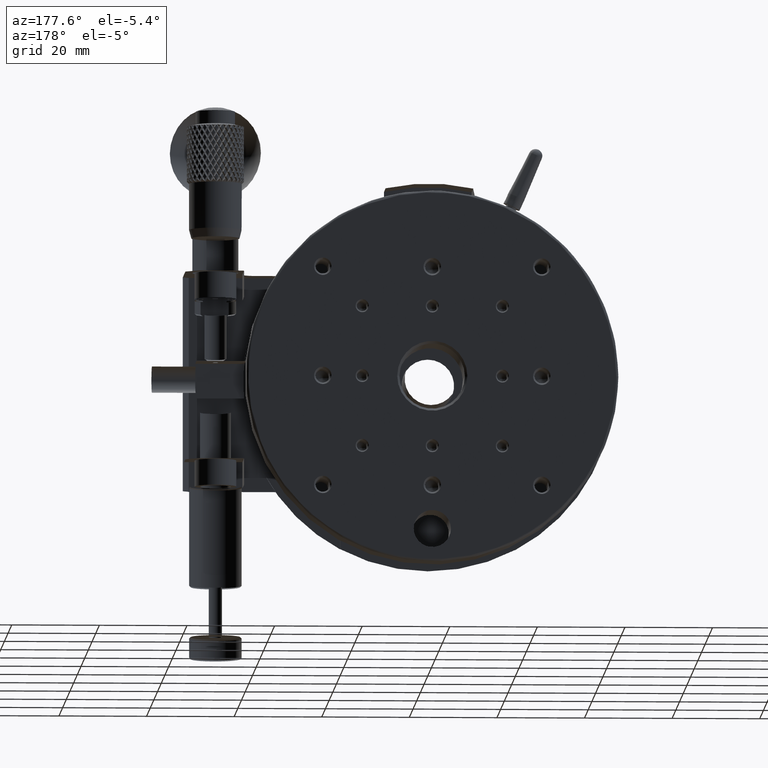
[diagram: clean part render]
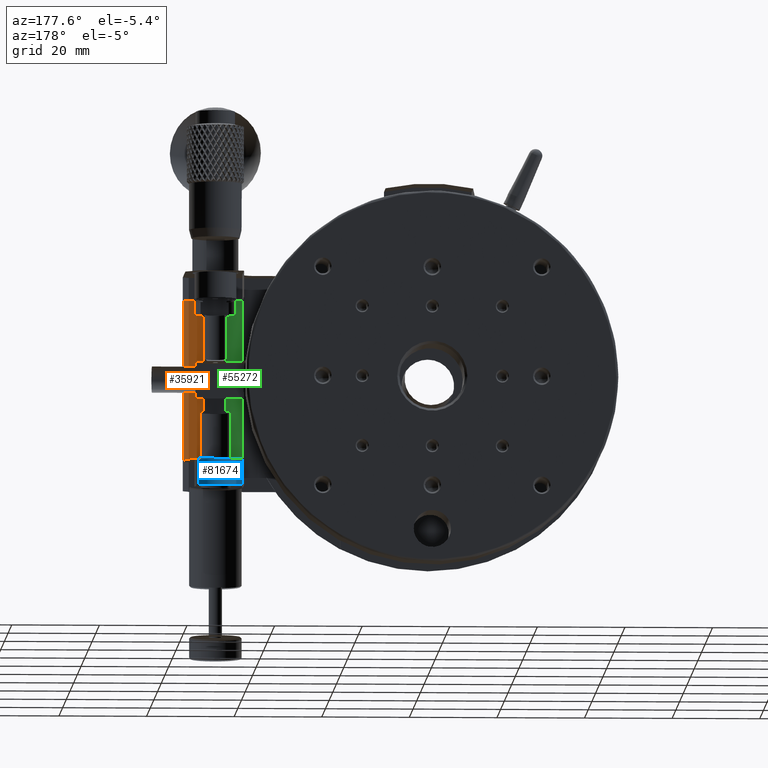
[diagram: same view with three faces highlighted in distinct colors, each labeled with its STEP entity id]
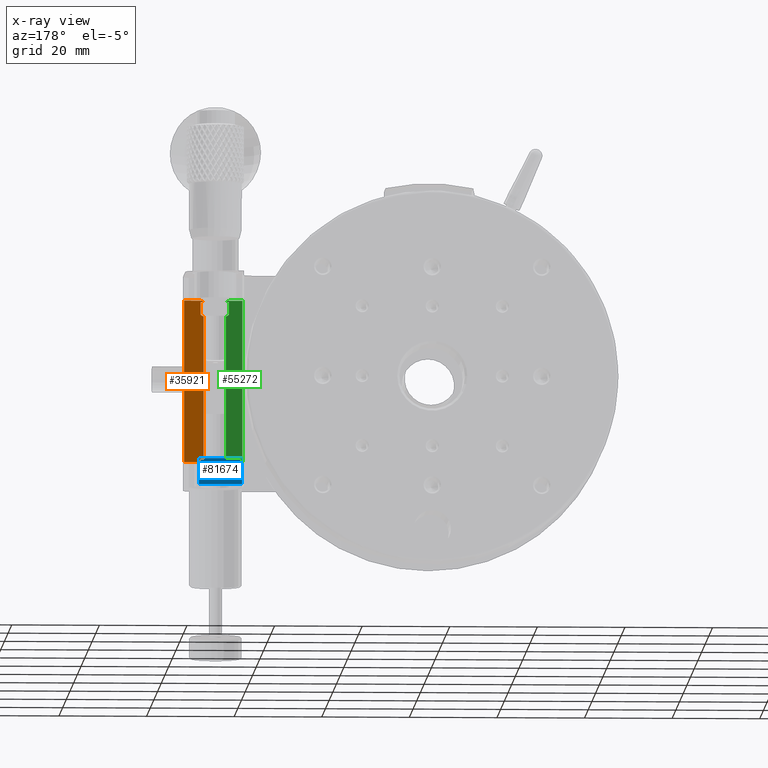
[diagram: x-ray of the same camera — body ghosted, the three highlighted faces saturated]
A machine part, auxiliary view with three faces highlighted in distinct colors.
The next image is the same camera in x-ray (body ghosted, the three faces saturated) — at least one of them is partly hidden behind the body in this view.
Their STEP definitions:

[orange] entity #35921 — the highlighted planar face has unit normal (0, 1, 0).
#231 = ORIENTED_EDGE ( 'NONE', *, *, #66153, .F. ) ;
#233 = ORIENTED_EDGE ( 'NONE', *, *, #70479, .F. ) ;
#405 = VERTEX_POINT ( 'NONE', #52703 ) ;
#999 = DIRECTION ( 'NONE',  ( 0.000000000000000000, -0.000000000000000000, 1.000000000000000000 ) ) ;
#1391 = LINE ( 'NONE', #15302, #58684 ) ;
#3023 = CARTESIAN_POINT ( 'NONE',  ( 58.00000000000000000, 9.000000000000001776, -18.50000000000000000 ) ) ;
#5159 = LINE ( 'NONE', #55667, #81026 ) ;
#5432 = LINE ( 'NONE', #63489, #51041 ) ;
#7582 = ORIENTED_EDGE ( 'NONE', *, *, #60546, .F. ) ;
#8435 = VECTOR ( 'NONE', #75627, 1000.000000000000000 ) ;
#8916 = DIRECTION ( 'NONE',  ( 1.000000000000000000, 0.000000000000000000, -0.000000000000000000 ) ) ;
#9353 = CARTESIAN_POINT ( 'NONE',  ( 0.000000000000000000, 9.000000000000001776, 18.50000000000000000 ) ) ;
#10268 = EDGE_LOOP ( 'NONE', ( #43279, #16944, #77671, #36057, #13155, #7582, #231, #14890, #17838, #233, #13900 ) ) ;
#10722 = CARTESIAN_POINT ( 'NONE',  ( 52.05574316715198790, 9.000000000000001776, 15.15082798328754699 ) ) ;
#11240 = VERTEX_POINT ( 'NONE', #53592 ) ;
#11471 = CARTESIAN_POINT ( 'NONE',  ( 51.73845503888599495, 9.000000000000010658, 62.45000000000000284 ) ) ;
#13155 = ORIENTED_EDGE ( 'NONE', *, *, #76416, .T. ) ;
#13900 = ORIENTED_EDGE ( 'NONE', *, *, #64164, .T. ) ;
#13925 = EDGE_CURVE ( 'NONE', #79300, #47817, #5159, .T. ) ;
#14419 = CARTESIAN_POINT ( 'NONE',  ( 51.73845503888598785, 9.000000000000007105, 18.45000000000000284 ) ) ;
#14890 = ORIENTED_EDGE ( 'NONE', *, *, #40602, .T. ) ;
#15302 = CARTESIAN_POINT ( 'NONE',  ( 49.00000000000000000, 9.000000000000001776, 14.94999999999999929 ) ) ;
#16676 = VERTEX_POINT ( 'NONE', #28564 ) ;
#16944 = ORIENTED_EDGE ( 'NONE', *, *, #36240, .F. ) ;
#16999 = VECTOR ( 'NONE', #35030, 1000.000000000000000 ) ;
#17838 = ORIENTED_EDGE ( 'NONE', *, *, #37498, .F. ) ;
#18405 = LINE ( 'NONE', #40565, #27049 ) ;
#20592 = CARTESIAN_POINT ( 'NONE',  ( 52.21130814466629033, 9.000000000000005329, 18.45000000000000284 ) ) ;
#21113 = DIRECTION ( 'NONE',  ( -1.000000000000000000, 0.000000000000000000, -0.000000000000000000 ) ) ;
#21570 = LINE ( 'NONE', #66565, #74760 ) ;
#21966 = VERTEX_POINT ( 'NONE', #40299 ) ;
#22930 = VECTOR ( 'NONE', #21113, 1000.000000000000000 ) ;
#22947 = CARTESIAN_POINT ( 'NONE',  ( 51.73845503890091635, 9.000000000000001776, 14.94999999999496332 ) ) ;
#23318 = VERTEX_POINT ( 'NONE', #31561 ) ;
#24309 = LINE ( 'NONE', #49931, #8435 ) ;
#24505 = DIRECTION ( 'NONE',  ( -0.000000000000000000, -0.000000000000000000, -1.000000000000000000 ) ) ;
#24798 = CARTESIAN_POINT ( 'NONE',  ( 56.00000000000000000, 9.000000000000001776, -18.50000000000000000 ) ) ;
#25070 = AXIS2_PLACEMENT_3D ( 'NONE', #77517, #40058, #40460 ) ;
#25618 = VERTEX_POINT ( 'NONE', #66502 ) ;
#27049 = VECTOR ( 'NONE', #999, 1000.000000000000000 ) ;
#27823 = VERTEX_POINT ( 'NONE', #14419 ) ;
#28467 = VECTOR ( 'NONE', #24505, 1000.000000000000000 ) ;
#28564 = CARTESIAN_POINT ( 'NONE',  ( 51.56173769148990260, 9.000000000000001776, 14.94999999999999929 ) ) ;
#29743 = VECTOR ( 'NONE', #80896, 1000.000000000000000 ) ;
#29753 = B_SPLINE_CURVE_WITH_KNOTS ( 'NONE', 3,
 ( #80599, #10722, #61213, #22947 ),
 .UNSPECIFIED., .F., .F.,
 ( 4, 4 ),
 ( 3.744461199094385205E-15, 0.0005632282482498706744 ),
 .UNSPECIFIED. ) ;
#31144 = DIRECTION ( 'NONE',  ( 0.000000000000000000, -0.000000000000000000, 1.000000000000000000 ) ) ;
#31561 = CARTESIAN_POINT ( 'NONE',  ( 56.00000000000000000, 9.000000000000001776, 18.50000000000000000 ) ) ;
#33407 = VERTEX_POINT ( 'NONE', #47766 ) ;
#35030 = DIRECTION ( 'NONE',  ( 1.000000000000000000, 0.000000000000000000, -0.000000000000000000 ) ) ;
#35474 = EDGE_CURVE ( 'NONE', #27823, #47817, #21570, .T. ) ;
#35921 = ADVANCED_FACE ( 'NONE', ( #72022 ), #51847, .F. ) ;
#36057 = ORIENTED_EDGE ( 'NONE', *, *, #35474, .F. ) ;
#36240 = EDGE_CURVE ( 'NONE', #79300, #23318, #73323, .T. ) ;
#36701 = LINE ( 'NONE', #11471, #28467 ) ;
#37498 = EDGE_CURVE ( 'NONE', #16676, #11240, #1391, .T. ) ;
#40058 = DIRECTION ( 'NONE',  ( 0.000000000000000000, 1.000000000000000000, 0.000000000000000000 ) ) ;
#40299 = CARTESIAN_POINT ( 'NONE',  ( 51.56173769148990260, 9.000000000000001776, -18.49999999999999645 ) ) ;
#40460 = DIRECTION ( 'NONE',  ( 0.000000000000000000, -0.000000000000000000, 1.000000000000000000 ) ) ;
#40565 = CARTESIAN_POINT ( 'NONE',  ( 51.56173769148990260, 9.000000000000001776, 0.000000000000000000 ) ) ;
#40602 = EDGE_CURVE ( 'NONE', #33407, #11240, #29753, .T. ) ;
#42696 = LINE ( 'NONE', #3023, #29743 ) ;
#43279 = ORIENTED_EDGE ( 'NONE', *, *, #80321, .F. ) ;
#46410 = CARTESIAN_POINT ( 'NONE',  ( 52.21130814466629033, 9.000000000000005329, 18.50000000000000355 ) ) ;
#47766 = CARTESIAN_POINT ( 'NONE',  ( 52.21130814466640402, 9.000000000000001776, 15.25599999999295164 ) ) ;
#47817 = VERTEX_POINT ( 'NONE', #20592 ) ;
#49931 = CARTESIAN_POINT ( 'NONE',  ( 56.00000000000000000, 9.000000000000001776, 24.50000000000000000 ) ) ;
#51041 = VECTOR ( 'NONE', #31144, 1000.000000000000000 ) ;
#51847 = PLANE ( 'NONE',  #25070 ) ;
#52232 = LINE ( 'NONE', #58961, #22930 ) ;
#52703 = CARTESIAN_POINT ( 'NONE',  ( 51.73845503888598785, 9.000000000000007105, 18.14999999999999858 ) ) ;
#53592 = CARTESIAN_POINT ( 'NONE',  ( 51.73845503890091635, 9.000000000000001776, 14.94999999999496332 ) ) ;
#55667 = CARTESIAN_POINT ( 'NONE',  ( 52.21130814466629033, 9.000000000000007105, 62.45000000000000284 ) ) ;
#56510 = DIRECTION ( 'NONE',  ( -0.000000000000000000, -0.000000000000000000, -1.000000000000000000 ) ) ;
#58684 = VECTOR ( 'NONE', #72504, 1000.000000000000000 ) ;
#58961 = CARTESIAN_POINT ( 'NONE',  ( 49.00000000000000000, 9.000000000000001776, 18.14999999999999858 ) ) ;
#60546 = EDGE_CURVE ( 'NONE', #25618, #405, #52232, .T. ) ;
#61213 = CARTESIAN_POINT ( 'NONE',  ( 51.89832756251279022, 9.000000000000001776, 15.04851568808332374 ) ) ;
#63489 = CARTESIAN_POINT ( 'NONE',  ( 52.21130814466629744, 9.000000000000001776, 0.000000000000000000 ) ) ;
#64164 = EDGE_CURVE ( 'NONE', #21966, #74426, #42696, .T. ) ;
#66153 = EDGE_CURVE ( 'NONE', #33407, #25618, #5432, .T. ) ;
#66502 = CARTESIAN_POINT ( 'NONE',  ( 52.21130814466629033, 9.000000000000001776, 18.14999999999999858 ) ) ;
#66565 = CARTESIAN_POINT ( 'NONE',  ( 49.00000000000000000, 9.000000000000001776, 18.45000000000000284 ) ) ;
#70479 = EDGE_CURVE ( 'NONE', #21966, #16676, #18405, .T. ) ;
#72022 = FACE_OUTER_BOUND ( 'NONE', #10268, .T. ) ;
#72504 = DIRECTION ( 'NONE',  ( 1.000000000000000000, 0.000000000000000000, -0.000000000000000000 ) ) ;
#73323 = LINE ( 'NONE', #9353, #16999 ) ;
#74426 = VERTEX_POINT ( 'NONE', #24798 ) ;
#74760 = VECTOR ( 'NONE', #8916, 1000.000000000000000 ) ;
#75627 = DIRECTION ( 'NONE',  ( -0.000000000000000000, -0.000000000000000000, -1.000000000000000000 ) ) ;
#76416 = EDGE_CURVE ( 'NONE', #27823, #405, #36701, .T. ) ;
#77517 = CARTESIAN_POINT ( 'NONE',  ( 0.000000000000000000, 9.000000000000001776, 0.000000000000000000 ) ) ;
#77671 = ORIENTED_EDGE ( 'NONE', *, *, #13925, .T. ) ;
#79300 = VERTEX_POINT ( 'NONE', #46410 ) ;
#80321 = EDGE_CURVE ( 'NONE', #23318, #74426, #24309, .T. ) ;
#80599 = CARTESIAN_POINT ( 'NONE',  ( 52.21130814466640402, 9.000000000000001776, 15.25599999999295164 ) ) ;
#80896 = DIRECTION ( 'NONE',  ( 1.000000000000000000, 0.000000000000000000, -0.000000000000000000 ) ) ;
#81026 = VECTOR ( 'NONE', #56510, 1000.000000000000000 ) ;

[blue] entity #81674 — the highlighted planar face has unit normal (0, -1, 0).
#346 = DIRECTION ( 'NONE',  ( 0.000000000000000000, -0.000000000000000000, -1.000000000000000000 ) ) ;
#1171 = VECTOR ( 'NONE', #50036, 1000.000000000000000 ) ;
#1611 = DIRECTION ( 'NONE',  ( -1.000000000000000000, -0.000000000000000000, 0.000000000000000000 ) ) ;
#2328 = CARTESIAN_POINT ( 'NONE',  ( 43.20000000000000284, 19.00000000000000000, 24.50000000000000000 ) ) ;
#5723 = VERTEX_POINT ( 'NONE', #42329 ) ;
#7101 = DIRECTION ( 'NONE',  ( 0.000000000000000000, -1.000000000000000000, 0.000000000000000000 ) ) ;
#16833 = VERTEX_POINT ( 'NONE', #22544 ) ;
#19059 = VERTEX_POINT ( 'NONE', #51656 ) ;
#20573 = FACE_OUTER_BOUND ( 'NONE', #66105, .T. ) ;
#22544 = CARTESIAN_POINT ( 'NONE',  ( 53.00000000000000000, 19.00000000000000000, -24.50000000000000000 ) ) ;
#26488 = PLANE ( 'NONE',  #29901 ) ;
#29556 = VECTOR ( 'NONE', #1611, 1000.000000000000000 ) ;
#29901 = AXIS2_PLACEMENT_3D ( 'NONE', #64728, #7101, #346 ) ;
#30734 = LINE ( 'NONE', #42471, #1171 ) ;
#32943 = CARTESIAN_POINT ( 'NONE',  ( 53.00000000000000000, 19.00000000000000000, -18.49999999999999645 ) ) ;
#41135 = ORIENTED_EDGE ( 'NONE', *, *, #57668, .T. ) ;
#42329 = CARTESIAN_POINT ( 'NONE',  ( 43.20000000000000284, 19.00000000000000000, -18.50000000000000000 ) ) ;
#42471 = CARTESIAN_POINT ( 'NONE',  ( 53.00000000000000000, 19.00000000000000000, 24.50000000000000000 ) ) ;
#46924 = LINE ( 'NONE', #2328, #76637 ) ;
#50036 = DIRECTION ( 'NONE',  ( -0.000000000000000000, 0.000000000000000000, 1.000000000000000000 ) ) ;
#50337 = EDGE_CURVE ( 'NONE', #16833, #58907, #30734, .T. ) ;
#51656 = CARTESIAN_POINT ( 'NONE',  ( 43.20000000000000284, 19.00000000000000000, -24.50000000000002487 ) ) ;
#52787 = EDGE_CURVE ( 'NONE', #58907, #5723, #80186, .T. ) ;
#52947 = LINE ( 'NONE', #65565, #29556 ) ;
#53669 = DIRECTION ( 'NONE',  ( -1.000000000000000000, -0.000000000000000000, -0.000000000000000000 ) ) ;
#53705 = ORIENTED_EDGE ( 'NONE', *, *, #52787, .T. ) ;
#54107 = EDGE_CURVE ( 'NONE', #16833, #19059, #52947, .T. ) ;
#57668 = EDGE_CURVE ( 'NONE', #5723, #19059, #46924, .T. ) ;
#58907 = VERTEX_POINT ( 'NONE', #32943 ) ;
#59007 = ORIENTED_EDGE ( 'NONE', *, *, #50337, .T. ) ;
#59599 = CARTESIAN_POINT ( 'NONE',  ( 53.00000000000000000, 19.00000000000000000, -18.49999999999999645 ) ) ;
#64370 = VECTOR ( 'NONE', #53669, 1000.000000000000000 ) ;
#64728 = CARTESIAN_POINT ( 'NONE',  ( 53.00000000000000000, 19.00000000000000000, 24.50000000000000000 ) ) ;
#65565 = CARTESIAN_POINT ( 'NONE',  ( 39.70000000000000284, 19.00000000000000000, -24.50000000000000000 ) ) ;
#66105 = EDGE_LOOP ( 'NONE', ( #59007, #53705, #41135, #71843 ) ) ;
#71843 = ORIENTED_EDGE ( 'NONE', *, *, #54107, .F. ) ;
#76637 = VECTOR ( 'NONE', #79774, 1000.000000000000000 ) ;
#79774 = DIRECTION ( 'NONE',  ( 0.000000000000000000, -0.000000000000000000, -1.000000000000000000 ) ) ;
#80186 = LINE ( 'NONE', #59599, #64370 ) ;
#81674 = ADVANCED_FACE ( 'NONE', ( #20573 ), #26488, .T. ) ;

[green] entity #55272 — the highlighted planar face has unit normal (0, 1, 0).
#2 = CARTESIAN_POINT ( 'NONE',  ( 45.78869185533370967, 9.000000000000001776, 18.14999999999999858 ) ) ;
#2770 = DIRECTION ( 'NONE',  ( 0.000000000000000000, 1.000000000000000000, 0.000000000000000000 ) ) ;
#4529 = B_SPLINE_CURVE_WITH_KNOTS ( 'NONE', 3,
 ( #64027, #32096, #57727, #51414 ),
 .UNSPECIFIED., .F., .F.,
 ( 4, 4 ),
 ( 1.606819071420821356E-14, 0.0005632282482611274035 ),
 .UNSPECIFIED. ) ;
#5158 = CARTESIAN_POINT ( 'NONE',  ( 45.78869185533370967, 9.000000000000005329, 18.45000000000000284 ) ) ;
#5849 = VECTOR ( 'NONE', #60547, 1000.000000000000000 ) ;
#5998 = LINE ( 'NONE', #6830, #67798 ) ;
#6830 = CARTESIAN_POINT ( 'NONE',  ( 0.000000000000000000, 9.000000000000001776, -18.50000000000000000 ) ) ;
#7786 = ORIENTED_EDGE ( 'NONE', *, *, #24804, .F. ) ;
#11116 = CARTESIAN_POINT ( 'NONE',  ( 45.78869185533360309, 9.000000000000001776, 15.25599999999295164 ) ) ;
#13124 = DIRECTION ( 'NONE',  ( -0.000000000000000000, -0.000000000000000000, 1.000000000000000000 ) ) ;
#15111 = EDGE_CURVE ( 'NONE', #75849, #31936, #15853, .T. ) ;
#15339 = EDGE_CURVE ( 'NONE', #77455, #75849, #19997, .T. ) ;
#15853 = LINE ( 'NONE', #66751, #63507 ) ;
#16240 = FACE_OUTER_BOUND ( 'NONE', #64466, .T. ) ;
#16331 = CARTESIAN_POINT ( 'NONE',  ( 49.00000000000000000, 9.000000000000001776, 18.14999999999999858 ) ) ;
#16636 = EDGE_CURVE ( 'NONE', #54324, #35719, #74795, .T. ) ;
#16970 = CARTESIAN_POINT ( 'NONE',  ( 42.69999999999999574, 9.000000000000001776, 18.50000000000000000 ) ) ;
#17111 = VERTEX_POINT ( 'NONE', #5158 ) ;
#17154 = DIRECTION ( 'NONE',  ( -1.000000000000000000, 0.000000000000000000, -0.000000000000000000 ) ) ;
#17182 = LINE ( 'NONE', #61776, #5849 ) ;
#18262 = DIRECTION ( 'NONE',  ( 1.000000000000000000, 0.000000000000000000, -0.000000000000000000 ) ) ;
#18798 = EDGE_CURVE ( 'NONE', #54324, #37938, #17182, .T. ) ;
#19273 = DIRECTION ( 'NONE',  ( 0.000000000000000000, 0.000000000000000000, 1.000000000000000000 ) ) ;
#19418 = LINE ( 'NONE', #70323, #78615 ) ;
#19997 = LINE ( 'NONE', #27170, #68912 ) ;
#21142 = ORIENTED_EDGE ( 'NONE', *, *, #77230, .T. ) ;
#21584 = VERTEX_POINT ( 'NONE', #11116 ) ;
#21656 = ORIENTED_EDGE ( 'NONE', *, *, #64226, .F. ) ;
#22550 = CARTESIAN_POINT ( 'NONE',  ( 0.000000000000000000, 9.000000000000001776, 0.000000000000000000 ) ) ;
#23824 = PLANE ( 'NONE',  #34899 ) ;
#24804 = EDGE_CURVE ( 'NONE', #31936, #70702, #5998, .T. ) ;
#25314 = CARTESIAN_POINT ( 'NONE',  ( 46.43826230851009740, 9.000000000000001776, 14.94999999999999929 ) ) ;
#25514 = EDGE_CURVE ( 'NONE', #70702, #33721, #19418, .T. ) ;
#27170 = CARTESIAN_POINT ( 'NONE',  ( 49.00000000000000000, 9.000000000000001776, 14.94999999999999929 ) ) ;
#27711 = EDGE_CURVE ( 'NONE', #33721, #30359, #64065, .T. ) ;
#28085 = CARTESIAN_POINT ( 'NONE',  ( 45.78869185533370967, 9.000000000000005329, 18.50000000000000355 ) ) ;
#29560 = LINE ( 'NONE', #67792, #68673 ) ;
#30359 = VERTEX_POINT ( 'NONE', #28085 ) ;
#30381 = ORIENTED_EDGE ( 'NONE', *, *, #15111, .F. ) ;
#31755 = ORIENTED_EDGE ( 'NONE', *, *, #27711, .F. ) ;
#31936 = VERTEX_POINT ( 'NONE', #72579 ) ;
#32096 = CARTESIAN_POINT ( 'NONE',  ( 46.10167243748757215, 9.000000000000001776, 15.04851568808322249 ) ) ;
#33721 = VERTEX_POINT ( 'NONE', #16970 ) ;
#33953 = CARTESIAN_POINT ( 'NONE',  ( 46.26154496111401926, 9.000000000000007105, 18.45000000000000284 ) ) ;
#34899 = AXIS2_PLACEMENT_3D ( 'NONE', #22550, #2770, #41876 ) ;
#35006 = VECTOR ( 'NONE', #18262, 1000.000000000000000 ) ;
#35294 = EDGE_CURVE ( 'NONE', #17111, #30359, #45318, .T. ) ;
#35719 = VERTEX_POINT ( 'NONE', #2 ) ;
#37938 = VERTEX_POINT ( 'NONE', #33953 ) ;
#38524 = VECTOR ( 'NONE', #19273, 1000.000000000000000 ) ;
#38836 = DIRECTION ( 'NONE',  ( 1.000000000000000000, 0.000000000000000000, -0.000000000000000000 ) ) ;
#41490 = DIRECTION ( 'NONE',  ( -0.000000000000000000, 0.000000000000000000, -1.000000000000000000 ) ) ;
#41724 = DIRECTION ( 'NONE',  ( -0.000000000000000000, 0.000000000000000000, -1.000000000000000000 ) ) ;
#41876 = DIRECTION ( 'NONE',  ( 0.000000000000000000, -0.000000000000000000, 1.000000000000000000 ) ) ;
#42039 = VECTOR ( 'NONE', #17154, 1000.000000000000000 ) ;
#42582 = CARTESIAN_POINT ( 'NONE',  ( 46.26154496111401926, 9.000000000000007105, 18.14999999999999858 ) ) ;
#44299 = CARTESIAN_POINT ( 'NONE',  ( 49.00000000000000000, 9.000000000000001776, 18.45000000000000284 ) ) ;
#44914 = CARTESIAN_POINT ( 'NONE',  ( 45.78869185533370967, 9.000000000000007105, 62.45000000000000284 ) ) ;
#45318 = LINE ( 'NONE', #44914, #38524 ) ;
#51414 = CARTESIAN_POINT ( 'NONE',  ( 45.78869185533360309, 9.000000000000001776, 15.25599999999295164 ) ) ;
#54324 = VERTEX_POINT ( 'NONE', #42582 ) ;
#54850 = ORIENTED_EDGE ( 'NONE', *, *, #16636, .F. ) ;
#55272 = ADVANCED_FACE ( 'NONE', ( #16240 ), #23824, .F. ) ;
#56382 = CARTESIAN_POINT ( 'NONE',  ( 46.26154496109180769, 9.000000000000001776, 14.94999999999945395 ) ) ;
#57727 = CARTESIAN_POINT ( 'NONE',  ( 45.94425683284769946, 9.000000000000001776, 15.15082798328770153 ) ) ;
#57862 = DIRECTION ( 'NONE',  ( 1.000000000000000000, 0.000000000000000000, -0.000000000000000000 ) ) ;
#60547 = DIRECTION ( 'NONE',  ( 0.000000000000000000, 0.000000000000000000, 1.000000000000000000 ) ) ;
#61393 = ORIENTED_EDGE ( 'NONE', *, *, #35294, .T. ) ;
#61776 = CARTESIAN_POINT ( 'NONE',  ( 46.26154496111401215, 9.000000000000014211, 62.45000000000000284 ) ) ;
#63507 = VECTOR ( 'NONE', #41490, 1000.000000000000000 ) ;
#64027 = CARTESIAN_POINT ( 'NONE',  ( 46.26154496109180769, 9.000000000000001776, 14.94999999999945395 ) ) ;
#64048 = DIRECTION ( 'NONE',  ( -1.000000000000000000, -0.000000000000000000, 0.000000000000000000 ) ) ;
#64065 = LINE ( 'NONE', #76710, #82734 ) ;
#64226 = EDGE_CURVE ( 'NONE', #35719, #21584, #29560, .T. ) ;
#64385 = ORIENTED_EDGE ( 'NONE', *, *, #15339, .F. ) ;
#64466 = EDGE_LOOP ( 'NONE', ( #54850, #75884, #66377, #61393, #31755, #67545, #7786, #30381, #64385, #21142, #21656 ) ) ;
#66377 = ORIENTED_EDGE ( 'NONE', *, *, #68781, .F. ) ;
#66751 = CARTESIAN_POINT ( 'NONE',  ( 46.43826230851009740, 9.000000000000001776, 0.000000000000000000 ) ) ;
#67545 = ORIENTED_EDGE ( 'NONE', *, *, #25514, .F. ) ;
#67792 = CARTESIAN_POINT ( 'NONE',  ( 45.78869185533370256, 9.000000000000001776, 0.000000000000000000 ) ) ;
#67798 = VECTOR ( 'NONE', #64048, 1000.000000000000000 ) ;
#68673 = VECTOR ( 'NONE', #41724, 1000.000000000000000 ) ;
#68781 = EDGE_CURVE ( 'NONE', #17111, #37938, #77146, .T. ) ;
#68912 = VECTOR ( 'NONE', #57862, 1000.000000000000000 ) ;
#70323 = CARTESIAN_POINT ( 'NONE',  ( 42.69999999999998863, 9.000000000000001776, 24.50000000000000000 ) ) ;
#70702 = VERTEX_POINT ( 'NONE', #71113 ) ;
#71113 = CARTESIAN_POINT ( 'NONE',  ( 42.69999999999999574, 9.000000000000001776, -18.49999999999999645 ) ) ;
#72579 = CARTESIAN_POINT ( 'NONE',  ( 46.43826230851009740, 9.000000000000001776, -18.49999999999999645 ) ) ;
#74795 = LINE ( 'NONE', #16331, #42039 ) ;
#75849 = VERTEX_POINT ( 'NONE', #25314 ) ;
#75884 = ORIENTED_EDGE ( 'NONE', *, *, #18798, .T. ) ;
#76710 = CARTESIAN_POINT ( 'NONE',  ( 0.000000000000000000, 9.000000000000001776, 18.50000000000000000 ) ) ;
#77146 = LINE ( 'NONE', #44299, #35006 ) ;
#77230 = EDGE_CURVE ( 'NONE', #77455, #21584, #4529, .T. ) ;
#77455 = VERTEX_POINT ( 'NONE', #56382 ) ;
#78615 = VECTOR ( 'NONE', #13124, 1000.000000000000000 ) ;
#82734 = VECTOR ( 'NONE', #38836, 1000.000000000000000 ) ;